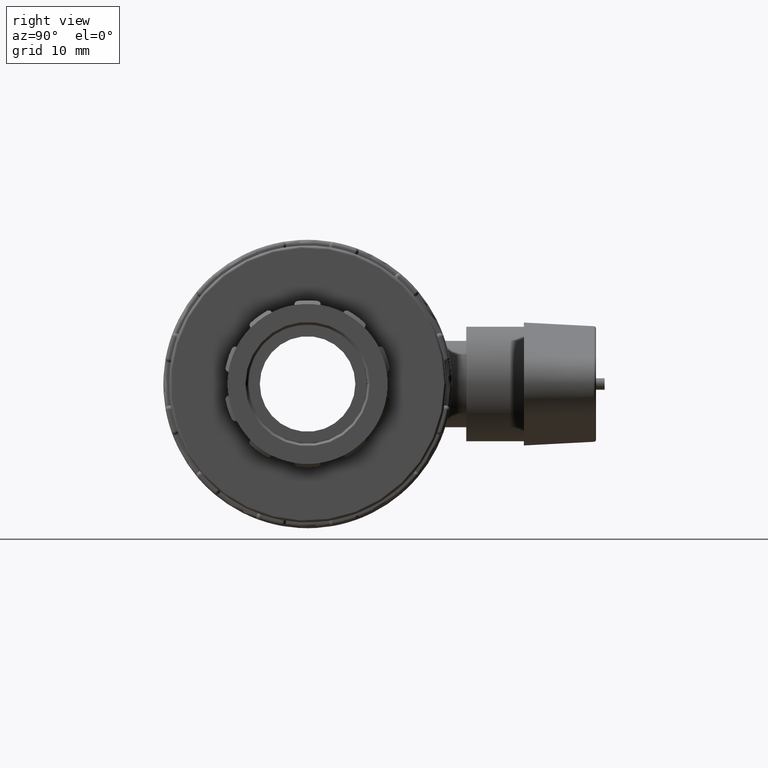
[diagram: clean part render]
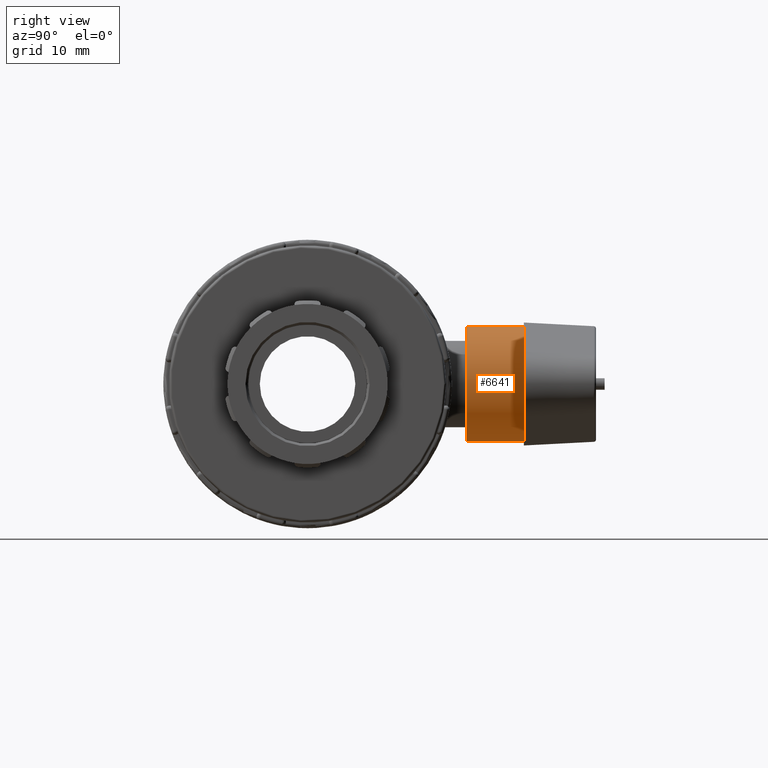
[diagram: same view with one face highlighted and labeled with its STEP entity id]
A machine part, right view. The second image highlights one B-rep face of the part: STEP entity #6641.
In plain terms, the highlighted cylindrical surface (bore or boss wall) has radius 9 mm, axis along (-0, 1, 0).
Its self-contained STEP definition (entity closure, byte-faithful):
#203=FACE_BOUND('',#882,.T.);
#444=FACE_OUTER_BOUND('',#881,.T.);
#881=EDGE_LOOP('',(#4428));
#882=EDGE_LOOP('',(#4429));
#2130=CIRCLE('',#7096,9.00000000000001);
#2131=CIRCLE('',#7102,9.00000000000001);
#2657=VERTEX_POINT('',#10411);
#2658=VERTEX_POINT('',#10421);
#3318=EDGE_CURVE('',#2657,#2657,#2130,.T.);
#3322=EDGE_CURVE('',#2658,#2658,#2131,.T.);
#4428=ORIENTED_EDGE('',*,*,#3318,.T.);
#4429=ORIENTED_EDGE('',*,*,#3322,.T.);
#6431=CYLINDRICAL_SURFACE('',#7104,9.00000000000001);
#6641=ADVANCED_FACE('',(#444,#203),#6431,.T.);
#7096=AXIS2_PLACEMENT_3D('',#10412,#8119,#8120);
#7102=AXIS2_PLACEMENT_3D('',#10422,#8134,#8135);
#7104=AXIS2_PLACEMENT_3D('',#10425,#8138,#8139);
#8119=DIRECTION('center_axis',(3.32377564961141E-16,-1.,1.66405949175404E-32));
#8120=DIRECTION('ref_axis',(-1.,0.,0.));
#8134=DIRECTION('center_axis',(-3.06161699786838E-16,1.,0.));
#8135=DIRECTION('ref_axis',(1.,3.06161699786838E-16,0.));
#8138=DIRECTION('center_axis',(-3.06161699786838E-16,1.,0.));
#8139=DIRECTION('ref_axis',(-1.,0.,0.));
#10411=CARTESIAN_POINT('',(9.00000000000001,33.75,1.10218211923262E-15));
#10412=CARTESIAN_POINT('Origin',(-2.75545529808155E-15,33.75,0.));
#10421=CARTESIAN_POINT('',(-9.00000000000001,24.75,0.));
#10422=CARTESIAN_POINT('Origin',(-8.43614877747297E-31,24.75,0.));
#10425=CARTESIAN_POINT('Origin',(-3.09988721034174E-15,34.875,0.));